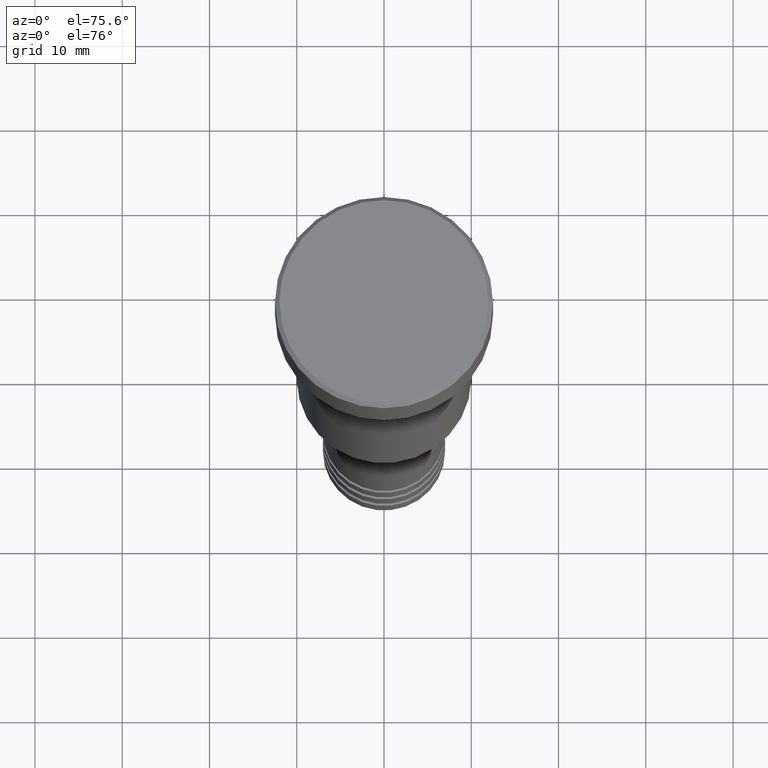
[diagram: clean part render]
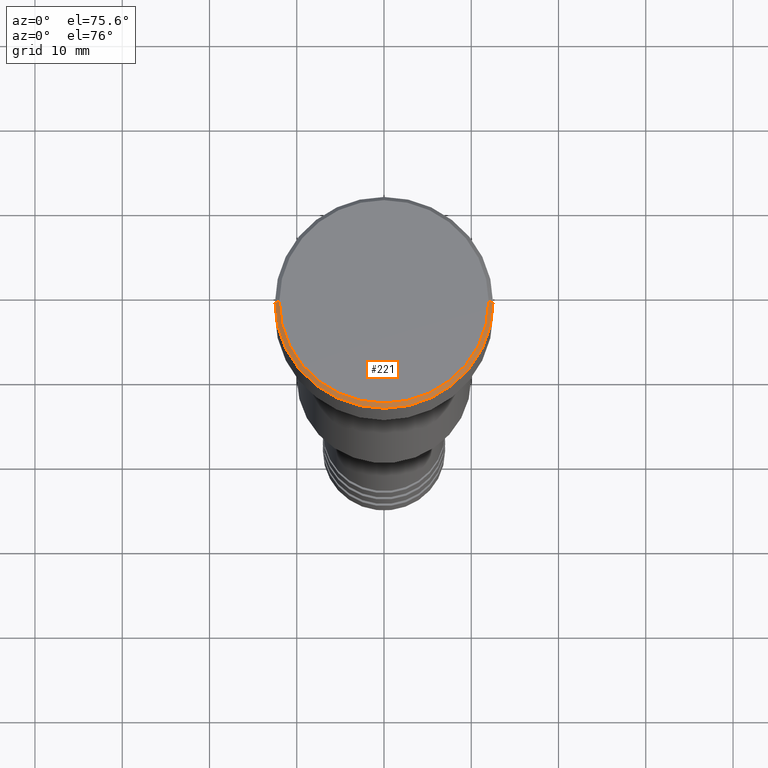
[diagram: same view with one face highlighted and labeled with its STEP entity id]
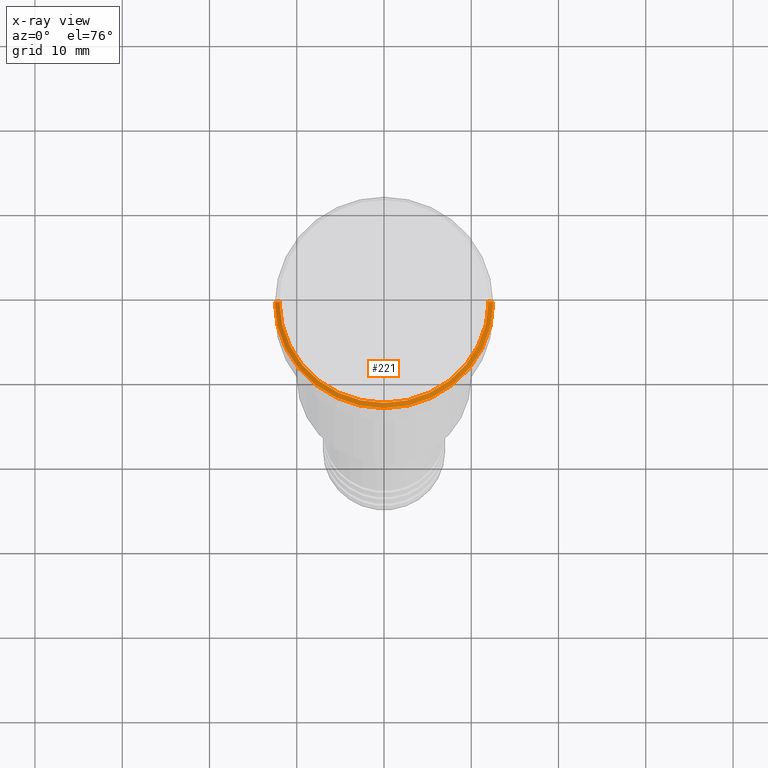
[diagram: x-ray of the same camera — body ghosted, the highlighted face saturated]
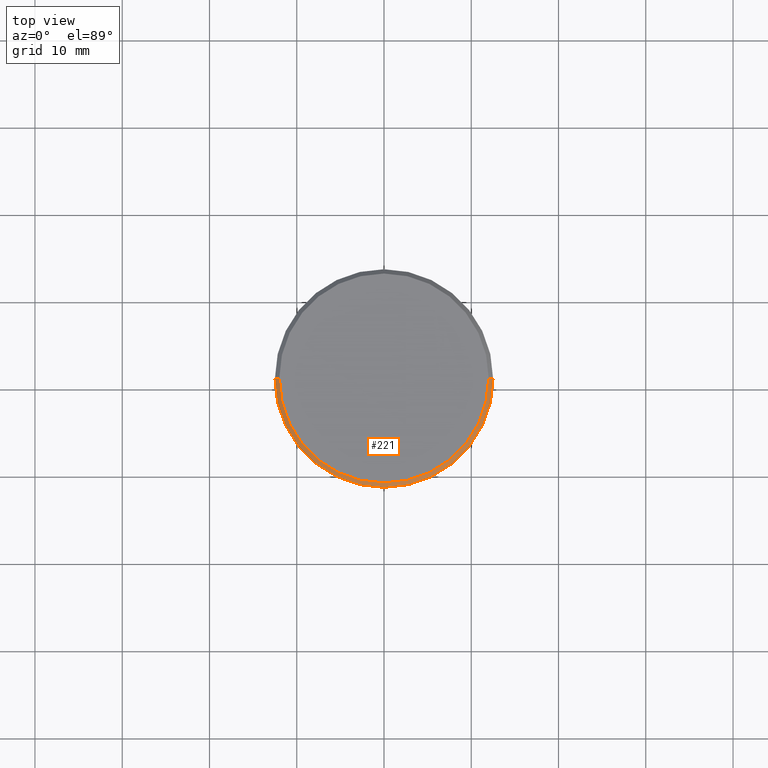
[diagram: same view with one face highlighted and labeled with its STEP entity id]
A machine part, auxiliary view. The second image highlights one B-rep face of the part: STEP entity #221.
The next image is the same camera in x-ray: the body ghosted, the highlighted face saturated — about 0% of this face is hidden behind the body in this view.
A second angle (top view) of the same face is appended — the face is thin or edge-on in the first view.
In plain terms, the highlighted conical surface has half-angle 45 deg.
Its self-contained STEP definition (entity closure, byte-faithful):
#1 = CARTESIAN_POINT ( 'NONE',  ( -12.50000000000000000, 1.530808498934191521E-15, -0.4999999999999987232 ) ) ;
#25 = DIRECTION ( 'NONE',  ( -0.7071067811865512365, 0.000000000000000000, -0.7071067811865439090 ) ) ;
#32 = DIRECTION ( 'NONE',  ( 1.000000000000000000, 0.000000000000000000, 0.000000000000000000 ) ) ;
#49 = VERTEX_POINT ( 'NONE', #155 ) ;
#63 = CARTESIAN_POINT ( 'NONE',  ( -11.99999999999999645, 0.000000000000000000, 0.000000000000000000 ) ) ;
#116 = CARTESIAN_POINT ( 'NONE',  ( -11.99999999999999645, 0.000000000000000000, 0.000000000000000000 ) ) ;
#123 = DIRECTION ( 'NONE',  ( 1.000000000000000000, 0.000000000000000000, 0.000000000000000000 ) ) ;
#155 = CARTESIAN_POINT ( 'NONE',  ( 12.50000000000000000, 0.000000000000000000, -0.4999999999999987232 ) ) ;
#172 = AXIS2_PLACEMENT_3D ( 'NONE', #404, #1131, #123 ) ;
#221 = ADVANCED_FACE ( 'NONE', ( #810 ), #794, .T. ) ;
#230 = VERTEX_POINT ( 'NONE', #1 ) ;
#249 = CARTESIAN_POINT ( 'NONE',  ( 0.000000000000000000, 0.000000000000000000, -0.4999999999999987232 ) ) ;
#283 = VECTOR ( 'NONE', #589, 1000.000000000000000 ) ;
#311 = DIRECTION ( 'NONE',  ( 0.000000000000000000, 0.000000000000000000, -1.000000000000000000 ) ) ;
#337 = AXIS2_PLACEMENT_3D ( 'NONE', #249, #311, #32 ) ;
#348 = CARTESIAN_POINT ( 'NONE',  ( 0.000000000000000000, 0.000000000000000000, 0.000000000000000000 ) ) ;
#404 = CARTESIAN_POINT ( 'NONE',  ( 0.000000000000000000, 0.000000000000000000, 0.000000000000000000 ) ) ;
#474 = EDGE_CURVE ( 'NONE', #1068, #230, #1111, .T. ) ;
#589 = DIRECTION ( 'NONE',  ( 0.7071067811865512365, 8.659560562354978464E-17, -0.7071067811865439090 ) ) ;
#604 = ORIENTED_EDGE ( 'NONE', *, *, #1091, .F. ) ;
#629 = DIRECTION ( 'NONE',  ( 0.000000000000000000, 0.000000000000000000, -1.000000000000000000 ) ) ;
#660 = ORIENTED_EDGE ( 'NONE', *, *, #662, .F. ) ;
#662 = EDGE_CURVE ( 'NONE', #969, #49, #1134, .T. ) ;
#734 = DIRECTION ( 'NONE',  ( -1.000000000000000000, 0.000000000000000000, 0.000000000000000000 ) ) ;
#756 = VECTOR ( 'NONE', #25, 1000.000000000000000 ) ;
#794 = CONICAL_SURFACE ( 'NONE', #1105, 11.99999999999999645, 0.7853981633974533860 ) ;
#810 = FACE_OUTER_BOUND ( 'NONE', #909, .T. ) ;
#909 = EDGE_LOOP ( 'NONE', ( #660, #1170, #1016, #604 ) ) ;
#951 = CARTESIAN_POINT ( 'NONE',  ( 11.99999999999999645, 1.469576158976823553E-15, 0.000000000000000000 ) ) ;
#969 = VERTEX_POINT ( 'NONE', #971 ) ;
#971 = CARTESIAN_POINT ( 'NONE',  ( 11.99999999999999645, 1.500192328955507537E-15, 0.000000000000000000 ) ) ;
#983 = EDGE_CURVE ( 'NONE', #1068, #969, #1081, .T. ) ;
#1016 = ORIENTED_EDGE ( 'NONE', *, *, #474, .T. ) ;
#1067 = CIRCLE ( 'NONE', #337, 12.50000000000000000 ) ;
#1068 = VERTEX_POINT ( 'NONE', #63 ) ;
#1081 = CIRCLE ( 'NONE', #172, 11.99999999999999645 ) ;
#1091 = EDGE_CURVE ( 'NONE', #49, #230, #1067, .T. ) ;
#1105 = AXIS2_PLACEMENT_3D ( 'NONE', #348, #629, #734 ) ;
#1111 = LINE ( 'NONE', #116, #756 ) ;
#1131 = DIRECTION ( 'NONE',  ( -0.000000000000000000, -0.000000000000000000, 1.000000000000000000 ) ) ;
#1134 = LINE ( 'NONE', #951, #283 ) ;
#1170 = ORIENTED_EDGE ( 'NONE', *, *, #983, .F. ) ;